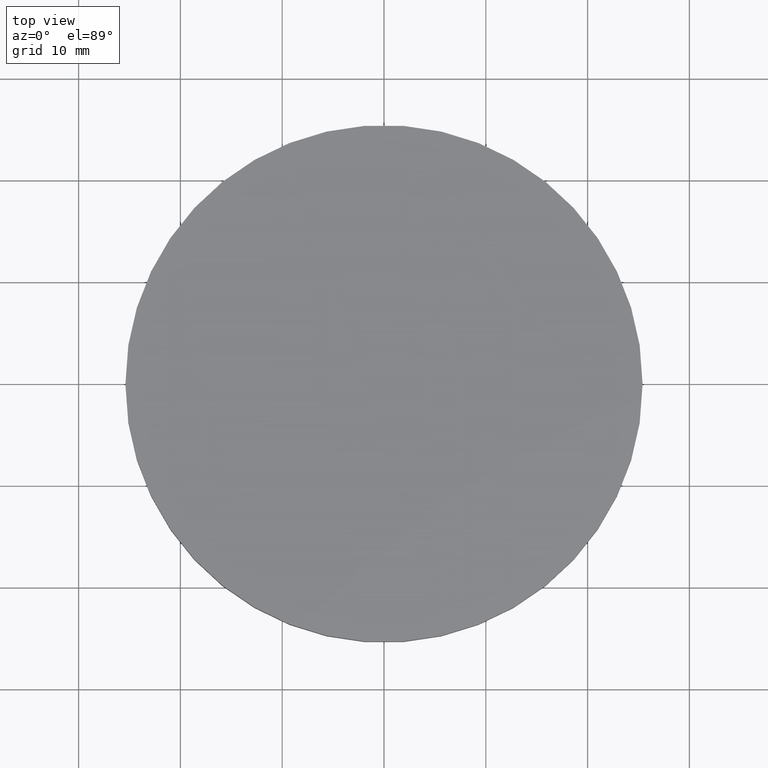
[diagram: clean part render]
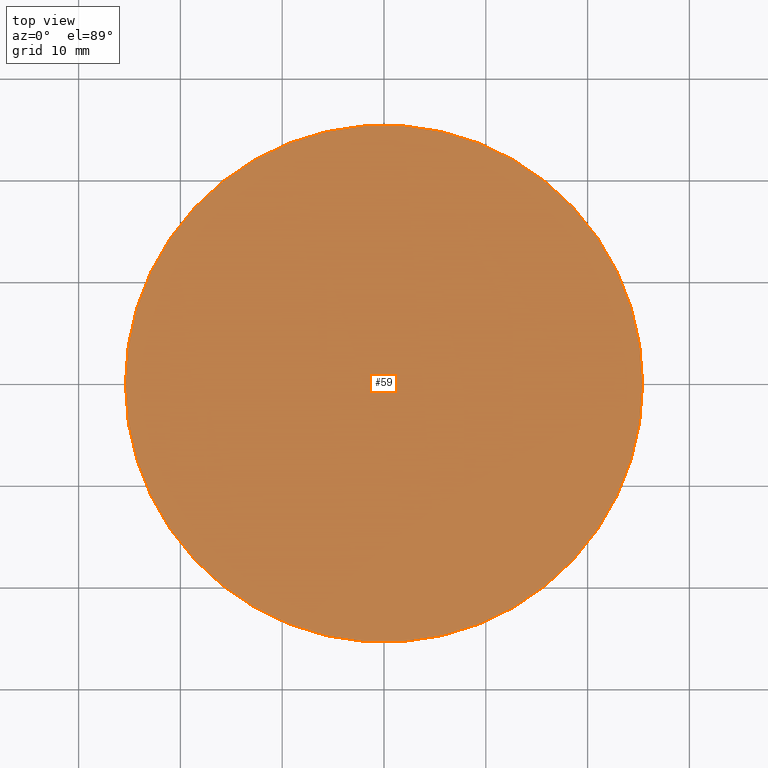
[diagram: same view with one face highlighted and labeled with its STEP entity id]
A machine part, top view. The second image highlights one B-rep face of the part: STEP entity #59.
In plain terms, the highlighted planar face has unit normal (0, 0, 1).
Its self-contained STEP definition (entity closure, byte-faithful):
#1 = CIRCLE ( 'NONE', #42, 25.39999999999999900 ) ;
#4 = DIRECTION ( 'NONE',  ( 0.0000000000000000000, 0.0000000000000000000, 1.000000000000000000 ) ) ;
#7 = CARTESIAN_POINT ( 'NONE',  ( 0.0000000000000000000, 0.0000000000000000000, 4.000000000000000000 ) ) ;
#13 = DIRECTION ( 'NONE',  ( 1.000000000000000000, 0.0000000000000000000, -0.0000000000000000000 ) ) ;
#17 = ORIENTED_EDGE ( 'NONE', *, *, #111, .T. ) ;
#18 = DIRECTION ( 'NONE',  ( 0.0000000000000000000, 0.0000000000000000000, 1.000000000000000000 ) ) ;
#22 = DIRECTION ( 'NONE',  ( 1.000000000000000000, 0.0000000000000000000, 0.0000000000000000000 ) ) ;
#24 = DIRECTION ( 'NONE',  ( 1.000000000000000000, 0.0000000000000000000, 0.0000000000000000000 ) ) ;
#29 = AXIS2_PLACEMENT_3D ( 'NONE', #41, #103, #13 ) ;
#30 = CIRCLE ( 'NONE', #36, 25.39999999999999900 ) ;
#31 = FACE_OUTER_BOUND ( 'NONE', #113, .T. ) ;
#36 = AXIS2_PLACEMENT_3D ( 'NONE', #115, #4, #22 ) ;
#41 = CARTESIAN_POINT ( 'NONE',  ( 0.0000000000000000000, 0.0000000000000000000, 4.000000000000000000 ) ) ;
#42 = AXIS2_PLACEMENT_3D ( 'NONE', #7, #18, #24 ) ;
#46 = CARTESIAN_POINT ( 'NONE',  ( 25.39999999999999900, 3.110602869834276900E-015, 4.000000000000000000 ) ) ;
#59 = ADVANCED_FACE ( 'NONE', ( #31 ), #71, .T. ) ;
#66 = VERTEX_POINT ( 'NONE', #135 ) ;
#71 = PLANE ( 'NONE',  #29 ) ;
#101 = ORIENTED_EDGE ( 'NONE', *, *, #124, .T. ) ;
#103 = DIRECTION ( 'NONE',  ( 0.0000000000000000000, 0.0000000000000000000, 1.000000000000000000 ) ) ;
#109 = VERTEX_POINT ( 'NONE', #46 ) ;
#111 = EDGE_CURVE ( 'NONE', #109, #66, #30, .T. ) ;
#113 = EDGE_LOOP ( 'NONE', ( #101, #17 ) ) ;
#115 = CARTESIAN_POINT ( 'NONE',  ( 0.0000000000000000000, 0.0000000000000000000, 4.000000000000000000 ) ) ;
#124 = EDGE_CURVE ( 'NONE', #66, #109, #1, .T. ) ;
#135 = CARTESIAN_POINT ( 'NONE',  ( -25.39999999999999900, 0.0000000000000000000, 4.000000000000000000 ) ) ;